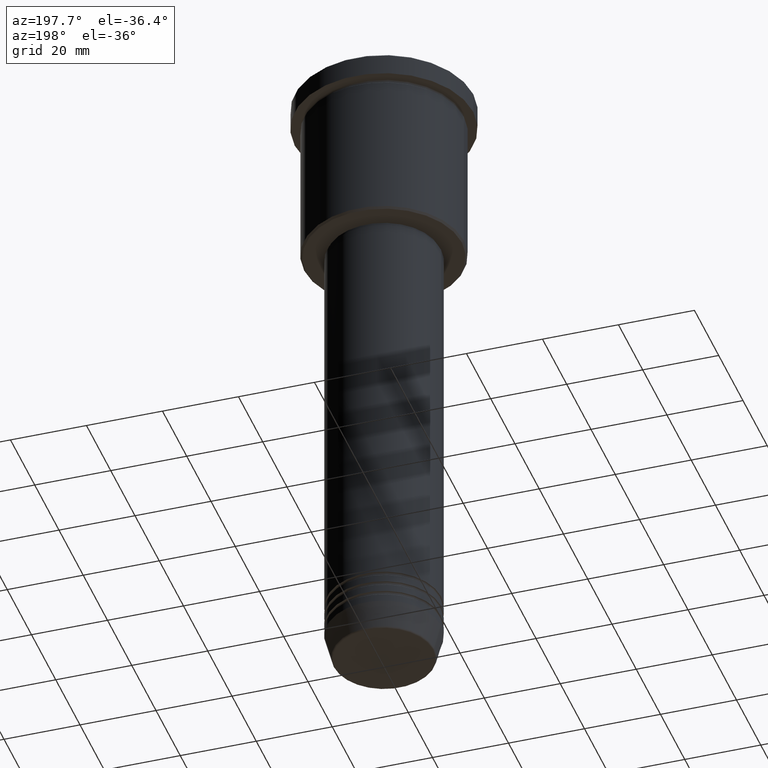
[diagram: clean part render]
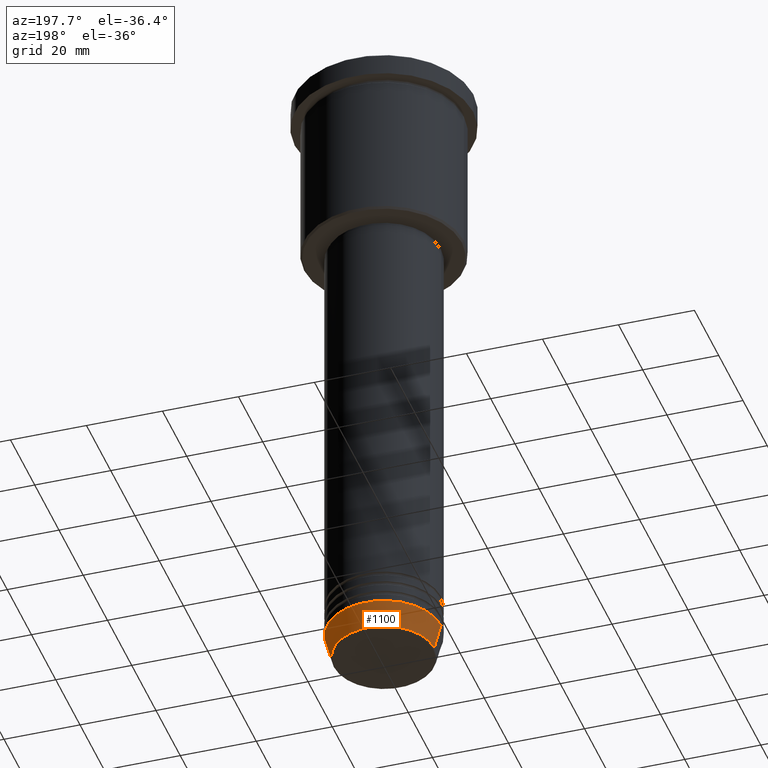
[diagram: same view with one face highlighted and labeled with its STEP entity id]
A machine part, auxiliary view. The second image highlights one B-rep face of the part: STEP entity #1100.
In plain terms, the highlighted conical surface has half-angle 15 deg.
Its self-contained STEP definition (entity closure, byte-faithful):
#26 = CARTESIAN_POINT ( 'NONE',  ( -15.00000000000000000, 1.836970198721029589E-15, -164.0000000000000000 ) ) ;
#43 = VERTEX_POINT ( 'NONE', #980 ) ;
#99 = DIRECTION ( 'NONE',  ( 1.000000000000000000, 0.000000000000000000, 0.000000000000000000 ) ) ;
#105 = DIRECTION ( 'NONE',  ( 1.000000000000000000, 0.000000000000000000, 0.000000000000000000 ) ) ;
#118 = CARTESIAN_POINT ( 'NONE',  ( 0.000000000000000000, 0.000000000000000000, -164.0000000000000000 ) ) ;
#139 = CARTESIAN_POINT ( 'NONE',  ( 15.00000000000000000, 0.000000000000000000, -164.0000000000000000 ) ) ;
#176 = DIRECTION ( 'NONE',  ( -0.000000000000000000, -0.000000000000000000, 1.000000000000000000 ) ) ;
#185 = CARTESIAN_POINT ( 'NONE',  ( 15.00000000000000000, 0.000000000000000000, -164.0000000000000000 ) ) ;
#193 = CONICAL_SURFACE ( 'NONE', #673, 15.00000000000000000, 0.2617993877991500740 ) ;
#230 = ORIENTED_EDGE ( 'NONE', *, *, #401, .T. ) ;
#243 = AXIS2_PLACEMENT_3D ( 'NONE', #439, #176, #435 ) ;
#279 = CARTESIAN_POINT ( 'NONE',  ( -15.00000000000000000, 1.836970198721029589E-15, -164.0000000000000000 ) ) ;
#292 = VERTEX_POINT ( 'NONE', #412 ) ;
#322 = AXIS2_PLACEMENT_3D ( 'NONE', #1081, #1107, #105 ) ;
#401 = EDGE_CURVE ( 'NONE', #292, #718, #754, .T. ) ;
#412 = CARTESIAN_POINT ( 'NONE',  ( -13.22365507213719305, 1.728200442216588583E-15, -170.6294095225512422 ) ) ;
#435 = DIRECTION ( 'NONE',  ( 1.000000000000000000, 0.000000000000000000, 0.000000000000000000 ) ) ;
#439 = CARTESIAN_POINT ( 'NONE',  ( 0.000000000000000000, 0.000000000000000000, -164.0000000000000000 ) ) ;
#460 = EDGE_CURVE ( 'NONE', #43, #539, #888, .T. ) ;
#503 = DIRECTION ( 'NONE',  ( -0.2588190451025213501, 3.169619151431772337E-17, 0.9659258262890680902 ) ) ;
#518 = ORIENTED_EDGE ( 'NONE', *, *, #1085, .T. ) ;
#539 = VERTEX_POINT ( 'NONE', #185 ) ;
#597 = DIRECTION ( 'NONE',  ( 0.2588190451025213501, 0.000000000000000000, 0.9659258262890680902 ) ) ;
#643 = FACE_OUTER_BOUND ( 'NONE', #646, .T. ) ;
#646 = EDGE_LOOP ( 'NONE', ( #518, #230, #906, #698 ) ) ;
#665 = DIRECTION ( 'NONE',  ( -0.000000000000000000, -0.000000000000000000, 1.000000000000000000 ) ) ;
#673 = AXIS2_PLACEMENT_3D ( 'NONE', #118, #665, #99 ) ;
#698 = ORIENTED_EDGE ( 'NONE', *, *, #460, .F. ) ;
#718 = VERTEX_POINT ( 'NONE', #279 ) ;
#754 = LINE ( 'NONE', #26, #966 ) ;
#846 = CIRCLE ( 'NONE', #322, 13.22365507213719305 ) ;
#888 = LINE ( 'NONE', #139, #1059 ) ;
#906 = ORIENTED_EDGE ( 'NONE', *, *, #978, .F. ) ;
#966 = VECTOR ( 'NONE', #503, 1000.000000000000000 ) ;
#978 = EDGE_CURVE ( 'NONE', #539, #718, #1136, .T. ) ;
#980 = CARTESIAN_POINT ( 'NONE',  ( 13.22365507213719305, 0.000000000000000000, -170.6294095225512422 ) ) ;
#1059 = VECTOR ( 'NONE', #597, 1000.000000000000000 ) ;
#1081 = CARTESIAN_POINT ( 'NONE',  ( 0.000000000000000000, 0.000000000000000000, -170.6294095225512422 ) ) ;
#1085 = EDGE_CURVE ( 'NONE', #43, #292, #846, .T. ) ;
#1100 = ADVANCED_FACE ( 'NONE', ( #643 ), #193, .T. ) ;
#1107 = DIRECTION ( 'NONE',  ( -0.000000000000000000, -0.000000000000000000, 1.000000000000000000 ) ) ;
#1136 = CIRCLE ( 'NONE', #243, 15.00000000000000000 ) ;